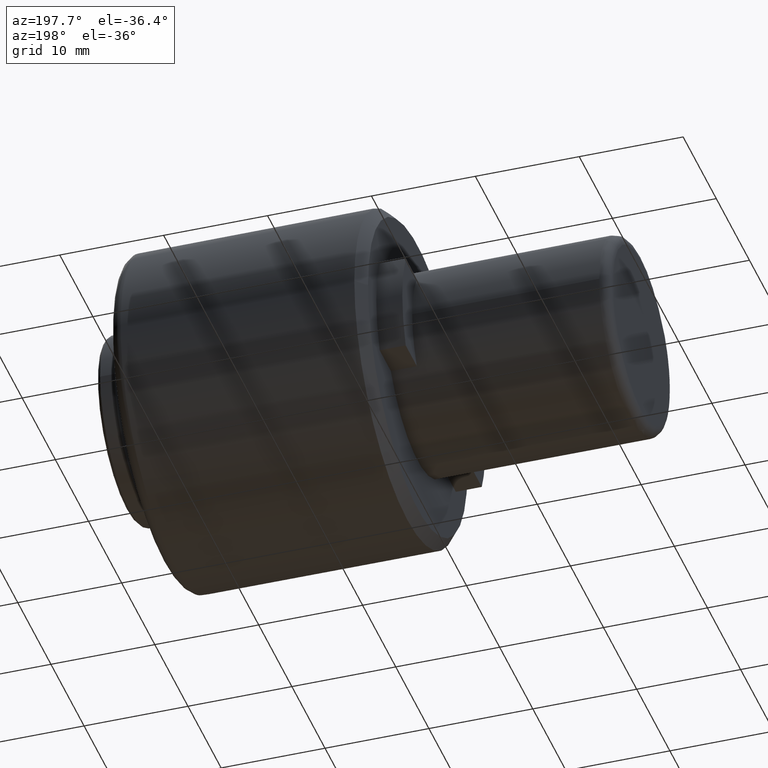
[diagram: clean part render]
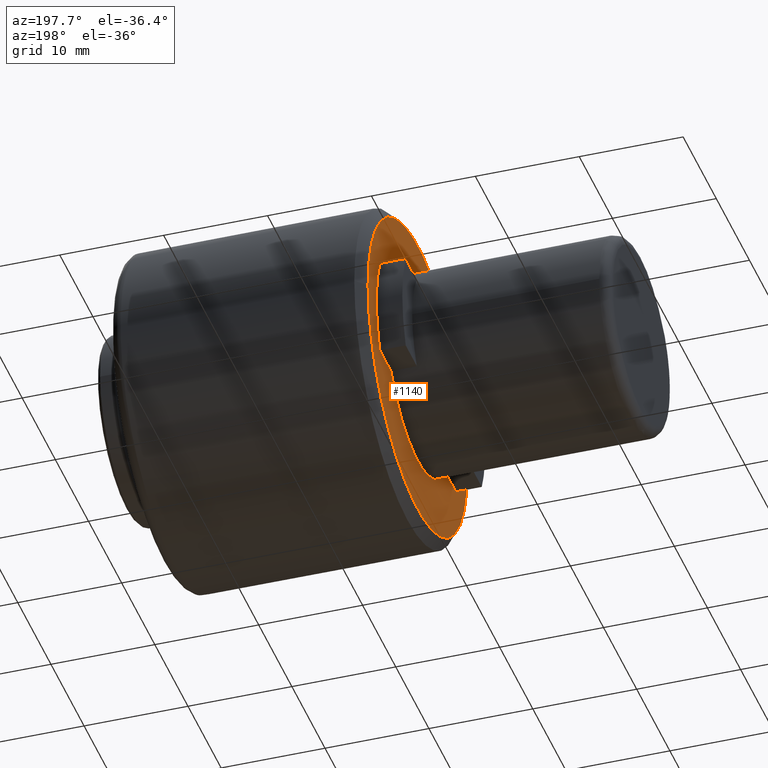
[diagram: same view with one face highlighted and labeled with its STEP entity id]
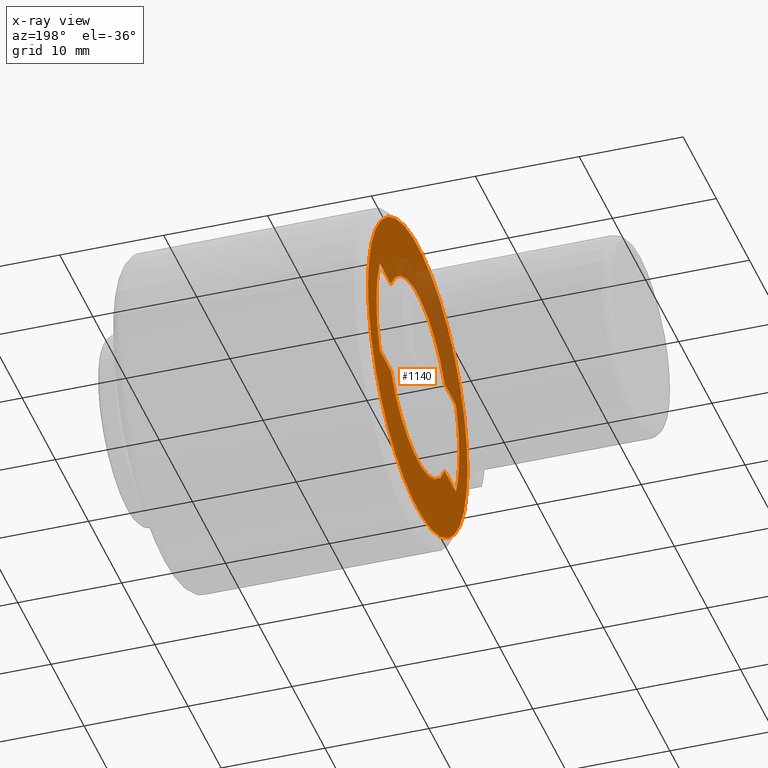
[diagram: x-ray of the same camera — body ghosted, the highlighted face saturated]
A machine part, auxiliary view. The second image highlights one B-rep face of the part: STEP entity #1140.
The next image is the same camera in x-ray: the body ghosted, the highlighted face saturated — about 28% of this face is hidden behind the body in this view.
In plain terms, the highlighted planar face has unit normal (1, -0, 0).
Its self-contained STEP definition (entity closure, byte-faithful):
#9 = EDGE_CURVE ( 'NONE', #1138, #292, #1120, .T. ) ;
#16 = DIRECTION ( 'NONE',  ( 0.0000000000000000000, 1.000000000000000000, 0.0000000000000000000 ) ) ;
#20 = VECTOR ( 'NONE', #430, 1000.000000000000000 ) ;
#30 = CARTESIAN_POINT ( 'NONE',  ( 21.50000000000000000, 11.47813138271872700, 4.949999996039999000 ) ) ;
#54 = ORIENTED_EDGE ( 'NONE', *, *, #869, .F. ) ;
#70 = FACE_BOUND ( 'NONE', #856, .T. ) ;
#73 = CARTESIAN_POINT ( 'NONE',  ( 21.50000000000000000, 8.108483214896875100, -4.949999995326831700 ) ) ;
#81 = CIRCLE ( 'NONE', #830, 14.99999999999996300 ) ;
#83 = EDGE_CURVE ( 'NONE', #620, #1230, #1122, .T. ) ;
#108 = VERTEX_POINT ( 'NONE', #964 ) ;
#116 = ORIENTED_EDGE ( 'NONE', *, *, #315, .T. ) ;
#160 = CARTESIAN_POINT ( 'NONE',  ( 21.50000000000000000, 2.703665273145965100E-031, 0.0000000000000000000 ) ) ;
#185 = CARTESIAN_POINT ( 'NONE',  ( 21.50000000000000000, -2.210607693693726000E-031, 0.0000000000000000000 ) ) ;
#196 = VERTEX_POINT ( 'NONE', #475 ) ;
#203 = VECTOR ( 'NONE', #518, 1000.000000000000000 ) ;
#239 = VECTOR ( 'NONE', #333, 1000.000000000000000 ) ;
#246 = ORIENTED_EDGE ( 'NONE', *, *, #1189, .F. ) ;
#247 = CARTESIAN_POINT ( 'NONE',  ( 21.50000000000000000, -2.210607693693726000E-031, 0.0000000000000000000 ) ) ;
#250 = AXIS2_PLACEMENT_3D ( 'NONE', #160, #1100, #753 ) ;
#254 = DIRECTION ( 'NONE',  ( -1.000000000000000000, -1.387778780781445700E-016, -0.0000000000000000000 ) ) ;
#262 = CARTESIAN_POINT ( 'NONE',  ( 21.50000000000000000, 8.108483213437139600, 4.949999997717991800 ) ) ;
#265 = DIRECTION ( 'NONE',  ( -1.000000000000000000, -1.387778780781445700E-016, -0.0000000000000000000 ) ) ;
#292 = VERTEX_POINT ( 'NONE', #1051 ) ;
#315 = EDGE_CURVE ( 'NONE', #903, #702, #778, .T. ) ;
#323 = DIRECTION ( 'NONE',  ( 3.652049423109067300E-016, -1.000000000000000000, 0.0000000000000000000 ) ) ;
#328 = CARTESIAN_POINT ( 'NONE',  ( 21.50000000000000000, 0.0000000000000000000, -4.949999992080006600 ) ) ;
#333 = DIRECTION ( 'NONE',  ( -0.0000000000000000000, -1.000000000000000000, -0.0000000000000000000 ) ) ;
#343 = DIRECTION ( 'NONE',  ( 1.000000000000000000, -0.0000000000000000000, 0.0000000000000000000 ) ) ;
#355 = LINE ( 'NONE', #431, #20 ) ;
#358 = CARTESIAN_POINT ( 'NONE',  ( 21.50000000000000000, -15.18000000000000100, 15.18000000000000100 ) ) ;
#369 = DIRECTION ( 'NONE',  ( 0.0000000000000000000, 0.0000000000000000000, -1.000000000000000000 ) ) ;
#378 = EDGE_CURVE ( 'NONE', #108, #1138, #1054, .T. ) ;
#382 = AXIS2_PLACEMENT_3D ( 'NONE', #358, #343, #369 ) ;
#425 = CARTESIAN_POINT ( 'NONE',  ( 21.50000000000000400, -8.108483214452393300, -4.949999996054926600 ) ) ;
#428 = DIRECTION ( 'NONE',  ( 2.775557561562891400E-016, -1.000000000000000000, 0.0000000000000000000 ) ) ;
#430 = DIRECTION ( 'NONE',  ( 0.0000000000000000000, 1.000000000000000000, 0.0000000000000000000 ) ) ;
#431 = CARTESIAN_POINT ( 'NONE',  ( 21.50000000000000000, 0.0000000000000000000, 4.949999992079996900 ) ) ;
#440 = VERTEX_POINT ( 'NONE', #262 ) ;
#446 = EDGE_CURVE ( 'NONE', #440, #292, #576, .T. ) ;
#473 = CARTESIAN_POINT ( 'NONE',  ( 21.50000000000000000, -11.47813138271872700, 4.949999996039999000 ) ) ;
#475 = CARTESIAN_POINT ( 'NONE',  ( 21.49999999999996800, -14.99999999999996300, 1.898202538678395200E-015 ) ) ;
#484 = CARTESIAN_POINT ( 'NONE',  ( 21.49999999999996800, -4.212971753347065100E-030, 0.0000000000000000000 ) ) ;
#502 = ORIENTED_EDGE ( 'NONE', *, *, #696, .F. ) ;
#504 = AXIS2_PLACEMENT_3D ( 'NONE', #841, #567, #1002 ) ;
#505 = DIRECTION ( 'NONE',  ( 2.775557561562891400E-016, -1.000000000000000000, 0.0000000000000000000 ) ) ;
#516 = DIRECTION ( 'NONE',  ( 1.000000000000000000, 1.826024711554533900E-016, 0.0000000000000000000 ) ) ;
#517 = CIRCLE ( 'NONE', #504, 14.99999999999996300 ) ;
#518 = DIRECTION ( 'NONE',  ( -0.0000000000000000000, -1.000000000000000000, -0.0000000000000000000 ) ) ;
#567 = DIRECTION ( 'NONE',  ( 1.000000000000000000, 1.156482317317871700E-016, -0.0000000000000000000 ) ) ;
#571 = CARTESIAN_POINT ( 'NONE',  ( 21.50000000000000000, -11.47813138271872400, -4.949999996040002500 ) ) ;
#572 = FACE_OUTER_BOUND ( 'NONE', #951, .T. ) ;
#576 = CIRCLE ( 'NONE', #250, 9.500000000000000000 ) ;
#580 = CARTESIAN_POINT ( 'NONE',  ( 21.50000000000000000, 0.0000000000000000000, -4.949999992080006600 ) ) ;
#590 = AXIS2_PLACEMENT_3D ( 'NONE', #247, #265, #505 ) ;
#620 = VERTEX_POINT ( 'NONE', #30 ) ;
#630 = ORIENTED_EDGE ( 'NONE', *, *, #1229, .F. ) ;
#632 = AXIS2_PLACEMENT_3D ( 'NONE', #1195, #1236, #428 ) ;
#653 = CARTESIAN_POINT ( 'NONE',  ( 21.49999999999996800, 14.99999999999996300, 0.0000000000000000000 ) ) ;
#659 = VECTOR ( 'NONE', #16, 1000.000000000000000 ) ;
#677 = DIRECTION ( 'NONE',  ( 1.000000000000000000, 1.156482317317871700E-016, -0.0000000000000000000 ) ) ;
#690 = VERTEX_POINT ( 'NONE', #571 ) ;
#696 = EDGE_CURVE ( 'NONE', #196, #809, #517, .T. ) ;
#702 = VERTEX_POINT ( 'NONE', #73 ) ;
#705 = ORIENTED_EDGE ( 'NONE', *, *, #1142, .F. ) ;
#739 = ORIENTED_EDGE ( 'NONE', *, *, #378, .F. ) ;
#743 = LINE ( 'NONE', #328, #239 ) ;
#753 = DIRECTION ( 'NONE',  ( 3.652049423109067300E-016, -1.000000000000000000, -8.881784197001252300E-016 ) ) ;
#763 = DIRECTION ( 'NONE',  ( 0.0000000000000000000, 1.000000000000000000, 0.0000000000000000000 ) ) ;
#778 = CIRCLE ( 'NONE', #1018, 9.500000000000000000 ) ;
#809 = VERTEX_POINT ( 'NONE', #653 ) ;
#830 = AXIS2_PLACEMENT_3D ( 'NONE', #484, #677, #763 ) ;
#840 = DIRECTION ( 'NONE',  ( 2.775557561562891400E-016, -1.000000000000000000, 0.0000000000000000000 ) ) ;
#841 = CARTESIAN_POINT ( 'NONE',  ( 21.49999999999996800, -4.212971753347065100E-030, 0.0000000000000000000 ) ) ;
#856 = EDGE_LOOP ( 'NONE', ( #54, #1158, #896, #739, #246, #705, #116, #630, #1213 ) ) ;
#869 = EDGE_CURVE ( 'NONE', #440, #620, #355, .T. ) ;
#893 = ORIENTED_EDGE ( 'NONE', *, *, #1208, .F. ) ;
#896 = ORIENTED_EDGE ( 'NONE', *, *, #9, .F. ) ;
#903 = VERTEX_POINT ( 'NONE', #425 ) ;
#951 = EDGE_LOOP ( 'NONE', ( #893, #502 ) ) ;
#964 = CARTESIAN_POINT ( 'NONE',  ( 21.50000000000000400, -12.50000000000000000, 0.0000000000000000000 ) ) ;
#1002 = DIRECTION ( 'NONE',  ( 0.0000000000000000000, 1.000000000000000000, 0.0000000000000000000 ) ) ;
#1018 = AXIS2_PLACEMENT_3D ( 'NONE', #1125, #516, #323 ) ;
#1034 = PLANE ( 'NONE',  #382 ) ;
#1051 = CARTESIAN_POINT ( 'NONE',  ( 21.50000000000000400, -8.108483213881616100, 4.949999996989907600 ) ) ;
#1054 = CIRCLE ( 'NONE', #1139, 12.50000000000000000 ) ;
#1100 = DIRECTION ( 'NONE',  ( 1.000000000000000000, 1.826024711554533900E-016, 0.0000000000000000000 ) ) ;
#1106 = CARTESIAN_POINT ( 'NONE',  ( 21.50000000000000000, 0.0000000000000000000, 4.949999992079996900 ) ) ;
#1120 = LINE ( 'NONE', #1106, #659 ) ;
#1122 = CIRCLE ( 'NONE', #632, 12.50000000000000000 ) ;
#1125 = CARTESIAN_POINT ( 'NONE',  ( 21.50000000000000000, -1.299390903533431500E-040, 0.0000000000000000000 ) ) ;
#1138 = VERTEX_POINT ( 'NONE', #473 ) ;
#1139 = AXIS2_PLACEMENT_3D ( 'NONE', #185, #254, #840 ) ;
#1140 = ADVANCED_FACE ( 'NONE', ( #70, #572 ), #1034, .F. ) ;
#1142 = EDGE_CURVE ( 'NONE', #903, #690, #743, .T. ) ;
#1158 = ORIENTED_EDGE ( 'NONE', *, *, #446, .T. ) ;
#1159 = CIRCLE ( 'NONE', #590, 12.50000000000000000 ) ;
#1189 = EDGE_CURVE ( 'NONE', #690, #108, #1159, .T. ) ;
#1195 = CARTESIAN_POINT ( 'NONE',  ( 21.50000000000000000, 2.210607693131455000E-031, 0.0000000000000000000 ) ) ;
#1200 = CARTESIAN_POINT ( 'NONE',  ( 21.50000000000000000, 11.47813138271872400, -4.949999996040002500 ) ) ;
#1208 = EDGE_CURVE ( 'NONE', #809, #196, #81, .T. ) ;
#1213 = ORIENTED_EDGE ( 'NONE', *, *, #83, .F. ) ;
#1218 = LINE ( 'NONE', #580, #203 ) ;
#1229 = EDGE_CURVE ( 'NONE', #1230, #702, #1218, .T. ) ;
#1230 = VERTEX_POINT ( 'NONE', #1200 ) ;
#1236 = DIRECTION ( 'NONE',  ( -1.000000000000000000, -1.387778780781445700E-016, -0.0000000000000000000 ) ) ;